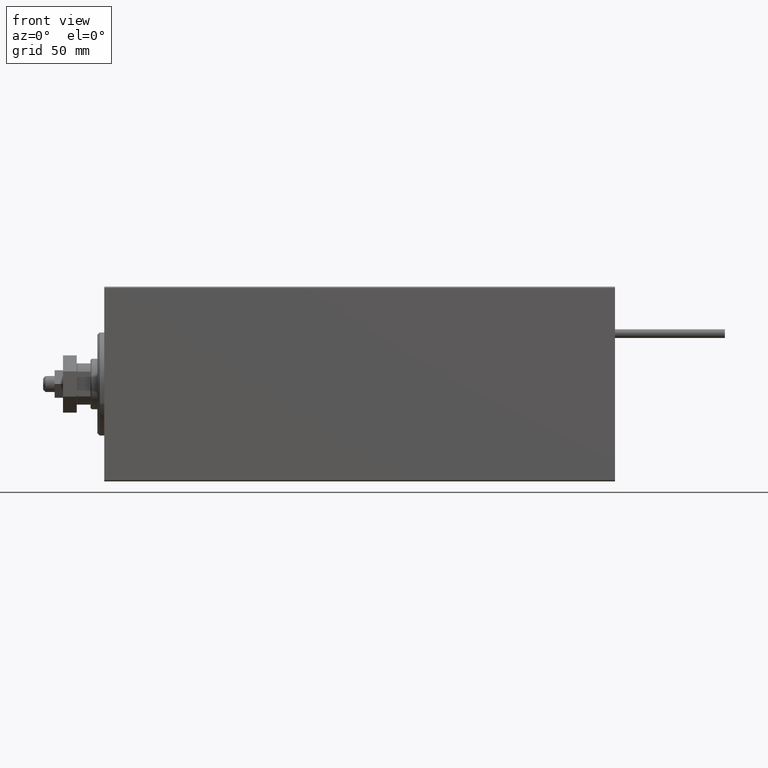
[diagram: clean part render]
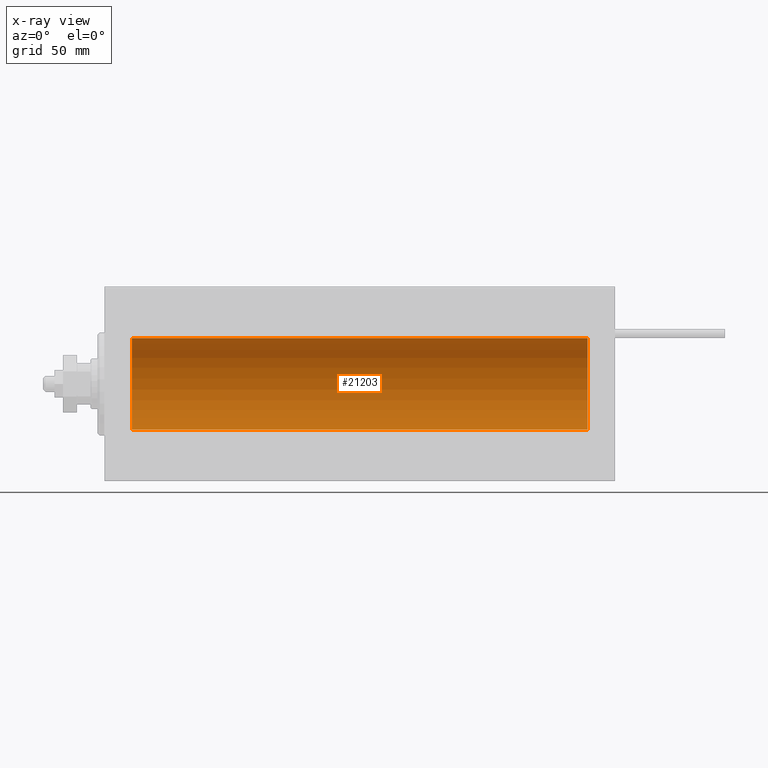
[diagram: x-ray — body ghosted, one internal face saturated and labeled with its STEP entity id]
A machine part, front view, then the same camera in x-ray: the body is ghosted and one INTERNAL B-rep face — a face not visible from any outside direction — is saturated and labeled: STEP entity #21203.
In plain terms, the highlighted cylindrical surface (partial cylindrical patch) has radius 20 mm, axis along (-1, -0, -0).
Its self-contained STEP definition (entity closure, byte-faithful):
#2375 = CIRCLE ( 'NONE', #16933, 20.00000000000000000 ) ;
#4021 = AXIS2_PLACEMENT_3D ( 'NONE', #8286, #33296, #40145 ) ;
#5523 = LINE ( 'NONE', #13836, #13795 ) ;
#6780 = CYLINDRICAL_SURFACE ( 'NONE', #19785, 20.00000000000000000 ) ;
#7269 = ORIENTED_EDGE ( 'NONE', *, *, #26170, .F. ) ;
#8286 = CARTESIAN_POINT ( 'NONE',  ( 211.0000000000000000, 0.000000000000000000, 0.000000000000000000 ) ) ;
#10167 = ORIENTED_EDGE ( 'NONE', *, *, #35756, .T. ) ;
#10303 = CARTESIAN_POINT ( 'NONE',  ( 211.0000000000000000, 0.000000000000000000, 0.000000000000000000 ) ) ;
#11054 = DIRECTION ( 'NONE',  ( 0.000000000000000000, 0.000000000000000000, 1.000000000000000000 ) ) ;
#11107 = EDGE_CURVE ( 'NONE', #41432, #32802, #5523, .T. ) ;
#13795 = VECTOR ( 'NONE', #20928, 1000.000000000000000 ) ;
#13836 = CARTESIAN_POINT ( 'NONE',  ( 211.0000000000000000, 0.000000000000000000, 20.00000000000000000 ) ) ;
#15912 = VERTEX_POINT ( 'NONE', #21648 ) ;
#16933 = AXIS2_PLACEMENT_3D ( 'NONE', #34861, #19648, #31572 ) ;
#18751 = ORIENTED_EDGE ( 'NONE', *, *, #35856, .F. ) ;
#19648 = DIRECTION ( 'NONE',  ( -1.000000000000000000, 0.000000000000000000, 0.000000000000000000 ) ) ;
#19785 = AXIS2_PLACEMENT_3D ( 'NONE', #10303, #41695, #11054 ) ;
#20928 = DIRECTION ( 'NONE',  ( -1.000000000000000000, -0.000000000000000000, -0.000000000000000000 ) ) ;
#21203 = ADVANCED_FACE ( 'NONE', ( #45506 ), #6780, .F. ) ;
#21648 = CARTESIAN_POINT ( 'NONE',  ( 12.00000000000001066, 2.449293598294706513E-15, -20.00000000000000000 ) ) ;
#26170 = EDGE_CURVE ( 'NONE', #32960, #15912, #33704, .T. ) ;
#26874 = CARTESIAN_POINT ( 'NONE',  ( 211.0000000000000000, 2.449293598294706513E-15, -20.00000000000000000 ) ) ;
#27121 = DIRECTION ( 'NONE',  ( -1.000000000000000000, -0.000000000000000000, -0.000000000000000000 ) ) ;
#30791 = EDGE_LOOP ( 'NONE', ( #7269, #18751, #42432, #10167 ) ) ;
#31291 = VECTOR ( 'NONE', #27121, 1000.000000000000000 ) ;
#31572 = DIRECTION ( 'NONE',  ( 0.000000000000000000, 0.000000000000000000, 1.000000000000000000 ) ) ;
#32802 = VERTEX_POINT ( 'NONE', #43147 ) ;
#32960 = VERTEX_POINT ( 'NONE', #40840 ) ;
#33296 = DIRECTION ( 'NONE',  ( -1.000000000000000000, 0.000000000000000000, 0.000000000000000000 ) ) ;
#33704 = LINE ( 'NONE', #26874, #31291 ) ;
#34861 = CARTESIAN_POINT ( 'NONE',  ( 12.00000000000001066, 0.000000000000000000, 0.000000000000000000 ) ) ;
#35756 = EDGE_CURVE ( 'NONE', #32802, #15912, #2375, .T. ) ;
#35856 = EDGE_CURVE ( 'NONE', #41432, #32960, #46045, .T. ) ;
#40145 = DIRECTION ( 'NONE',  ( 0.000000000000000000, 0.000000000000000000, 1.000000000000000000 ) ) ;
#40840 = CARTESIAN_POINT ( 'NONE',  ( 211.0000000000000000, 2.449293598294706513E-15, -20.00000000000000000 ) ) ;
#41432 = VERTEX_POINT ( 'NONE', #45042 ) ;
#41695 = DIRECTION ( 'NONE',  ( -1.000000000000000000, -0.000000000000000000, -0.000000000000000000 ) ) ;
#42432 = ORIENTED_EDGE ( 'NONE', *, *, #11107, .T. ) ;
#43147 = CARTESIAN_POINT ( 'NONE',  ( 12.00000000000001066, 0.000000000000000000, 20.00000000000000000 ) ) ;
#45042 = CARTESIAN_POINT ( 'NONE',  ( 211.0000000000000000, 0.000000000000000000, 20.00000000000000000 ) ) ;
#45506 = FACE_OUTER_BOUND ( 'NONE', #30791, .T. ) ;
#46045 = CIRCLE ( 'NONE', #4021, 20.00000000000000000 ) ;